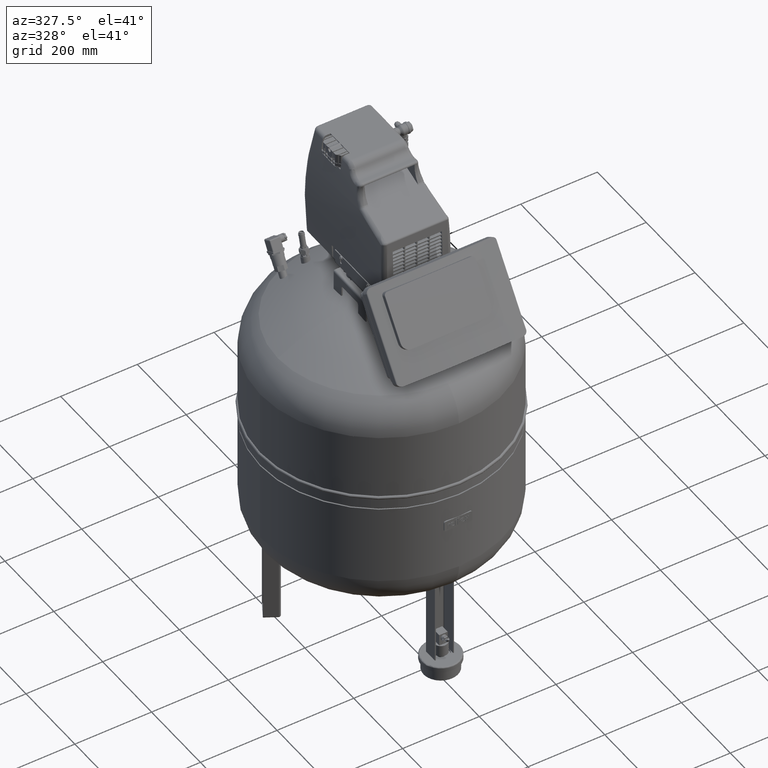
[diagram: clean part render]
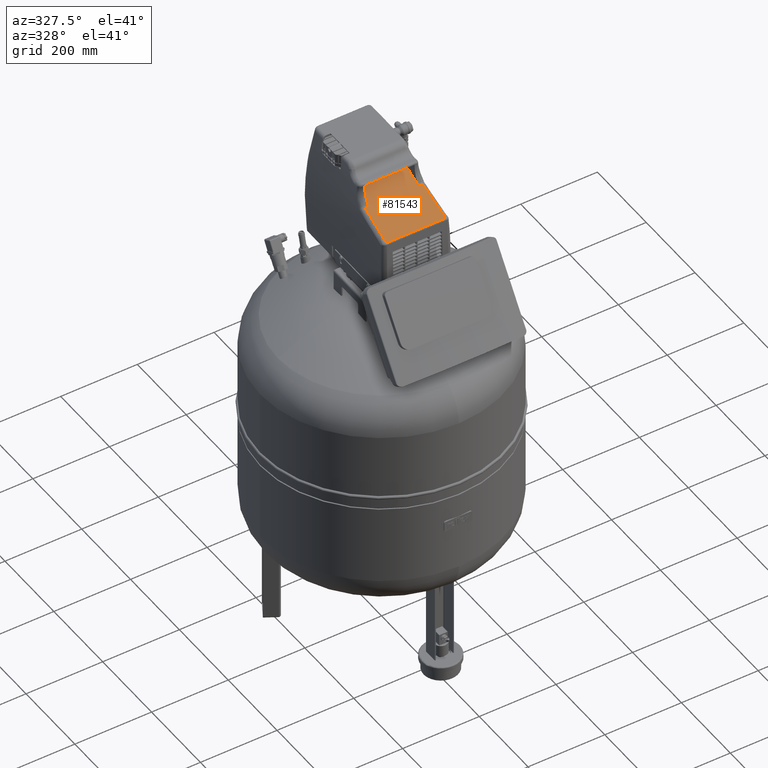
[diagram: same view with one face highlighted and labeled with its STEP entity id]
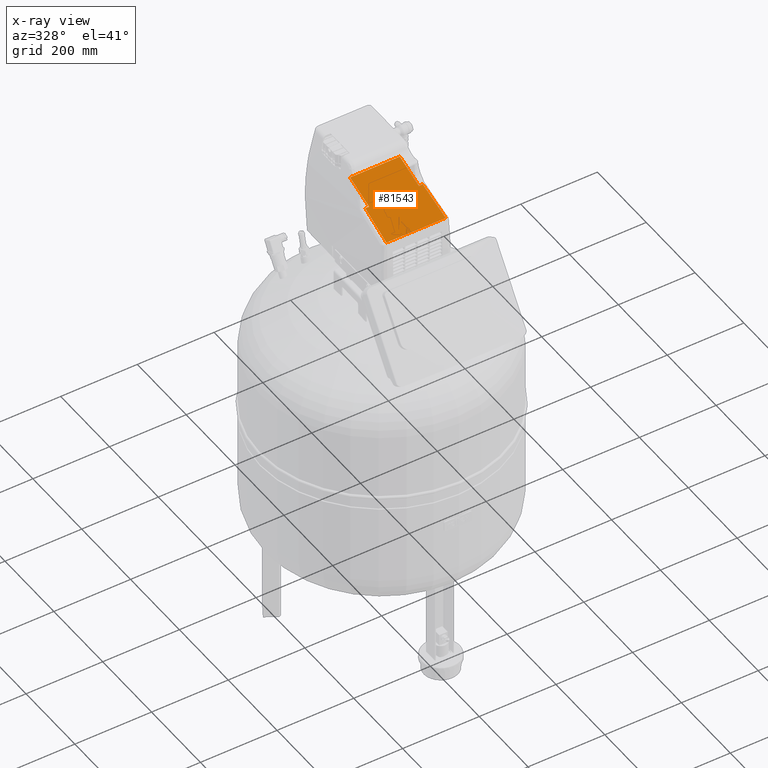
[diagram: x-ray of the same camera — body ghosted, the highlighted face saturated]
A machine part, auxiliary view. The second image highlights one B-rep face of the part: STEP entity #81543.
The next image is the same camera in x-ray: the body ghosted, the highlighted face saturated — about 0% of this face is hidden behind the body in this view.
In plain terms, the highlighted planar face has unit normal (-0, -0.342, 0.9397).
Its self-contained STEP definition (entity closure, byte-faithful):
#76704=CARTESIAN_POINT('',(-65.000000000000057,-50.786250487908859,1235.9270302467235));
#76705=VERTEX_POINT('',#76704);
#76715=CARTESIAN_POINT('',(-65.000000000000057,27.017708665958054,1264.2453554867948));
#76716=VERTEX_POINT('',#76715);
#76717=CARTESIAN_POINT('',(-65.000000000000057,-50.786250487908859,1235.9270302467235));
#76718=DIRECTION('',(1.716344E-016,0.939692620785908,0.34202014332567));
#76719=VECTOR('',#76718,82.797243942169075);
#76720=LINE('',#76717,#76719);
#76721=EDGE_CURVE('',#76705,#76716,#76720,.T.);
#76785=CARTESIAN_POINT('',(64.999999999999943,27.017708665958054,1264.2453554867948));
#76786=VERTEX_POINT('',#76785);
#76795=CARTESIAN_POINT('',(-65.000000000000057,27.017708665958065,1264.2453554867948));
#76796=DIRECTION('',(1.0,0.0,0.0));
#76797=VECTOR('',#76796,130.0);
#76798=LINE('',#76795,#76797);
#76799=EDGE_CURVE('',#76716,#76786,#76798,.T.);
#76811=CARTESIAN_POINT('',(64.999999999999943,-50.786250487908859,1235.9270302467235));
#76812=VERTEX_POINT('',#76811);
#76829=CARTESIAN_POINT('',(64.999999999999957,27.017708665958153,1264.2453554867946));
#76830=DIRECTION('',(-1.716344E-016,-0.939692620785908,-0.34202014332567));
#76831=VECTOR('',#76830,82.797243942169075);
#76832=LINE('',#76829,#76831);
#76833=EDGE_CURVE('',#76786,#76812,#76832,.T.);
#76852=CARTESIAN_POINT('',(-74.896989628256364,-50.786250487908859,1235.9270302467235));
#76853=VERTEX_POINT('',#76852);
#76873=CARTESIAN_POINT('',(-74.896989628256364,-50.786250487908845,1235.9270302467235));
#76874=DIRECTION('',(1.0,0.0,0.0));
#76875=VECTOR('',#76874,9.896989628256307);
#76876=LINE('',#76873,#76875);
#76877=EDGE_CURVE('',#76853,#76705,#76876,.T.);
#76888=CARTESIAN_POINT('',(74.896989628256023,-50.786250487908859,1235.9270302467235));
#76889=VERTEX_POINT('',#76888);
#76890=CARTESIAN_POINT('',(64.999999999999943,-50.786250487908873,1235.9270302467235));
#76891=DIRECTION('',(1.0,0.0,0.0));
#76892=VECTOR('',#76891,9.89698962825608);
#76893=LINE('',#76890,#76892);
#76894=EDGE_CURVE('',#76812,#76889,#76893,.T.);
#77952=CARTESIAN_POINT('',(-77.107918793424233,-141.00245636040185,1203.0910166607046));
#77953=VERTEX_POINT('',#77952);
#77961=CARTESIAN_POINT('',(-77.384927248886925,-140.99452554917511,1203.0939032399244));
#77962=VERTEX_POINT('',#77961);
#77963=CARTESIAN_POINT('',(-77.107918793424233,-141.00245636040208,1203.0910166607046));
#77964=CARTESIAN_POINT('',(-77.140713337940696,-141.00245636040208,1203.0910166607046));
#77965=CARTESIAN_POINT('',(-77.173513310537601,-141.0021236627932,1203.0911377527309));
#77966=CARTESIAN_POINT('',(-77.235867855970554,-141.00085723210131,1203.0915986958066));
#77967=CARTESIAN_POINT('',(-77.265423569369432,-140.99998599686032,1203.0919157995013));
#77968=CARTESIAN_POINT('',(-77.31342981113994,-140.99812994681869,1203.0925913464698));
#77969=CARTESIAN_POINT('',(-77.331888511731307,-140.99731024902357,1203.0928896920684));
#77970=CARTESIAN_POINT('',(-77.361872043934341,-140.9958063410821,1203.0934370697942));
#77971=CARTESIAN_POINT('',(-77.373401321753619,-140.9951865941658,1203.0936626392245));
#77972=CARTESIAN_POINT('',(-77.384927248886925,-140.99452554917511,1203.0939032399247));
#77973=B_SPLINE_CURVE_WITH_KNOTS('',3,(#77963,#77964,#77965,#77966,#77967,#77968,#77969,#77970,#77971,#77972),.UNSPECIFIED.,.F.,.U.,(4,2,2,2,4),(-0.027713699591375,-0.017875336236436,-0.009006952367194,-0.003464212448919,3.753942E-015),.UNSPECIFIED.);
#77974=EDGE_CURVE('',#77953,#77962,#77973,.T.);
#79067=CARTESIAN_POINT('',(1233.9793513775155,-368.6452818895865,1120.2358041238274));
#79068=DIRECTION('',(2.354468E-016,0.342020143325668,-0.939692620785909));
#79069=DIRECTION('',(8.204822E-017,0.939692620785909,0.342020143325668));
#79070=AXIS2_PLACEMENT_3D('',#79067,#79068,#79069);
#79071=ELLIPSE('',#79070,3841.8186092810279,1313.9793513775157);
#79072=EDGE_CURVE('',#77962,#76853,#79071,.T.);
#79373=CARTESIAN_POINT('',(77.107918793423835,-141.00245636040185,1203.0910166607046));
#79374=VERTEX_POINT('',#79373);
#79397=CARTESIAN_POINT('',(77.384927248886498,-140.99452554917556,1203.0939032399242));
#79398=VERTEX_POINT('',#79397);
#79406=CARTESIAN_POINT('',(77.384927248886498,-140.99452554917511,1203.0939032399247));
#79407=CARTESIAN_POINT('',(77.373401321753221,-140.99518659416603,1203.0936626392245));
#79408=CARTESIAN_POINT('',(77.361872043933943,-140.99580634108233,1203.0934370697942));
#79409=CARTESIAN_POINT('',(77.331888511730881,-140.99731024902357,1203.0928896920684));
#79410=CARTESIAN_POINT('',(77.313429811139571,-140.99812994681892,1203.0925913464698));
#79411=CARTESIAN_POINT('',(77.265423569369062,-140.99998599686032,1203.0919157995013));
#79412=CARTESIAN_POINT('',(77.235867855970184,-141.00085723210131,1203.0915986958066));
#79413=CARTESIAN_POINT('',(77.17351331053726,-141.0021236627932,1203.0911377527309));
#79414=CARTESIAN_POINT('',(77.140713337940298,-141.00245636040208,1203.0910166607043));
#79415=CARTESIAN_POINT('',(77.107918793423835,-141.00245636040208,1203.0910166607043));
#79416=B_SPLINE_CURVE_WITH_KNOTS('',3,(#79406,#79407,#79408,#79409,#79410,#79411,#79412,#79413,#79414,#79415),.UNSPECIFIED.,.F.,.U.,(4,2,2,2,4),(0.0,0.003464212448922,0.009006952367197,0.017875336236438,0.027713699591377),.UNSPECIFIED.);
#79417=EDGE_CURVE('',#79398,#79374,#79416,.T.);
#80197=CARTESIAN_POINT('',(-1233.9793513774807,-368.64528188958604,1120.2358041238272));
#80198=DIRECTION('',(2.354468E-016,0.342020143325668,-0.939692620785909));
#80199=DIRECTION('',(1.144144E-016,0.939692620785909,0.342020143325668));
#80200=AXIS2_PLACEMENT_3D('',#80197,#80198,#80199);
#80201=ELLIPSE('',#80200,3841.818609280926,1313.9793513774812);
#80202=EDGE_CURVE('',#76889,#79398,#80201,.T.);
#81521=CARTESIAN_POINT('',(-6.319786E-014,-50.786250487908859,1235.9270302467235));
#81522=DIRECTION('',(-2.354468E-016,-0.342020143325668,0.939692620785909));
#81523=DIRECTION('',(-1.0,0.0,0.0));
#81524=AXIS2_PLACEMENT_3D('',#81521,#81522,#81523);
#81525=PLANE('',#81524);
#81526=ORIENTED_EDGE('',*,*,#77974,.F.);
#81527=CARTESIAN_POINT('',(-77.107918793424233,-141.00245636040231,1203.0910166607043));
#81528=DIRECTION('',(1.0,0.0,0.0));
#81529=VECTOR('',#81528,154.21583758684807);
#81530=LINE('',#81527,#81529);
#81531=EDGE_CURVE('',#77953,#79374,#81530,.T.);
#81532=ORIENTED_EDGE('',*,*,#81531,.T.);
#81533=ORIENTED_EDGE('',*,*,#79417,.F.);
#81534=ORIENTED_EDGE('',*,*,#80202,.F.);
#81535=ORIENTED_EDGE('',*,*,#76894,.F.);
#81536=ORIENTED_EDGE('',*,*,#76833,.F.);
#81537=ORIENTED_EDGE('',*,*,#76799,.F.);
#81538=ORIENTED_EDGE('',*,*,#76721,.F.);
#81539=ORIENTED_EDGE('',*,*,#76877,.F.);
#81540=ORIENTED_EDGE('',*,*,#79072,.F.);
#81541=EDGE_LOOP('',(#81526,#81532,#81533,#81534,#81535,#81536,#81537,#81538,#81539,#81540));
#81542=FACE_OUTER_BOUND('',#81541,.T.);
#81543=ADVANCED_FACE('',(#81542),#81525,.T.);